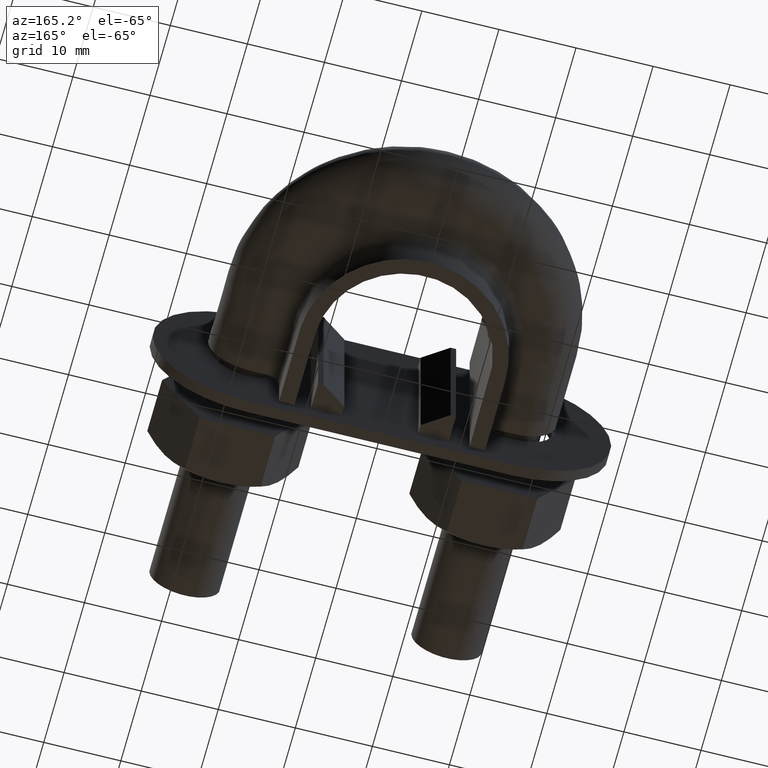
[diagram: clean part render]
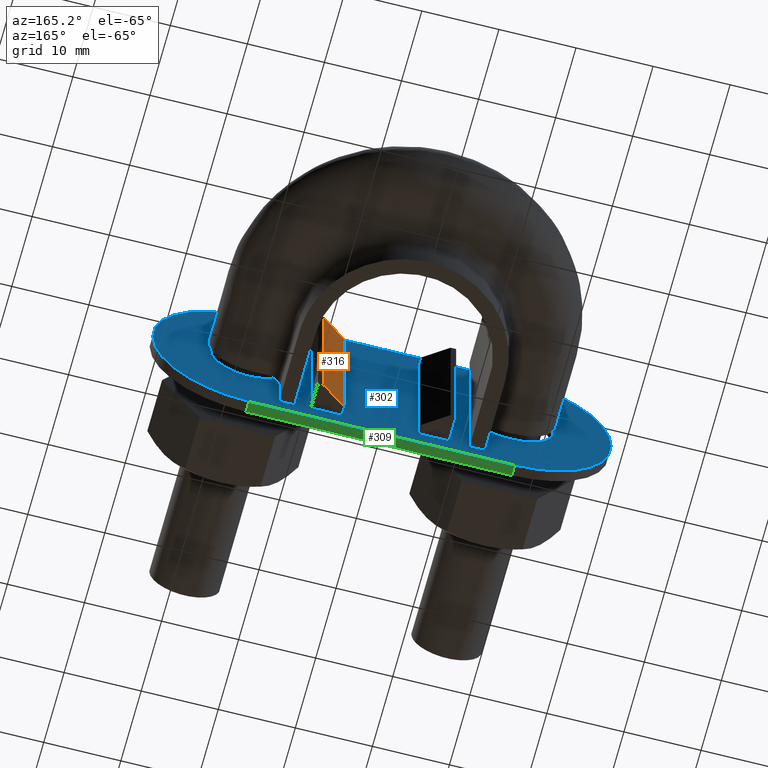
[diagram: same view with three faces highlighted in distinct colors, each labeled with its STEP entity id]
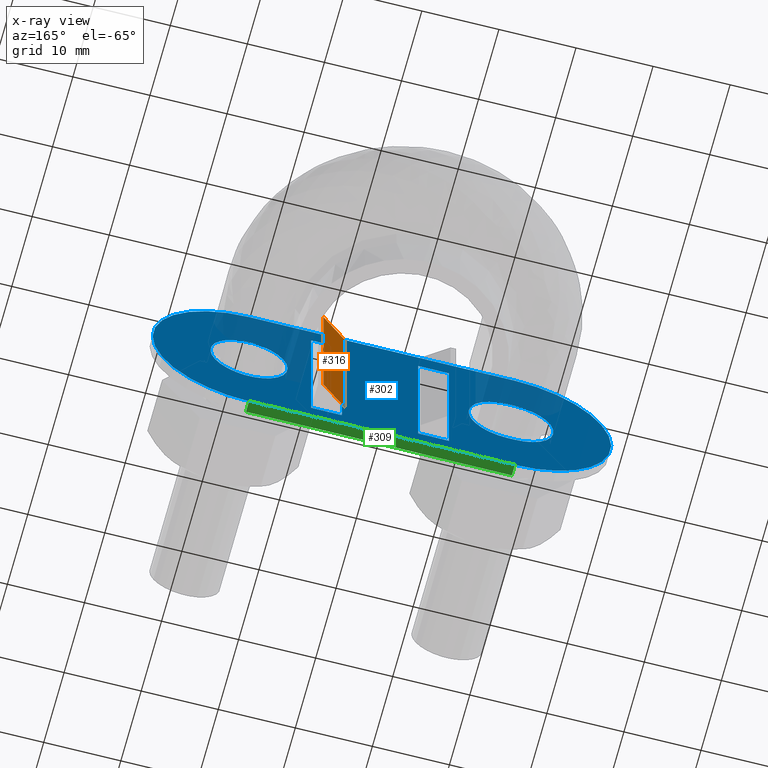
[diagram: x-ray of the same camera — body ghosted, the three highlighted faces saturated]
A machine part, auxiliary view with three faces highlighted in distinct colors.
The next image is the same camera in x-ray (body ghosted, the three faces saturated) — at least one of them is partly hidden behind the body in this view.
Their STEP definitions:

[orange] entity #316 — the highlighted planar face has unit normal (-0.5736, 0.8192, 0).
#316 = ADVANCED_FACE( '', ( #500 ), #501, .T. );
#500 = FACE_OUTER_BOUND( '', #1664, .T. );
#501 = PLANE( '', #1665 );
#1664 = EDGE_LOOP( '', ( #2153, #2154, #2155, #2156 ) );
#1665 = AXIS2_PLACEMENT_3D( '', #2157, #2158, #2159 );
#2153 = ORIENTED_EDGE( '', *, *, #2738, .F. );
#2154 = ORIENTED_EDGE( '', *, *, #2737, .F. );
#2155 = ORIENTED_EDGE( '', *, *, #2739, .T. );
#2156 = ORIENTED_EDGE( '', *, *, #2740, .T. );
#2157 = CARTESIAN_POINT( '', ( 8.23474038345669, 35.0999999999955, -10.0000000263939 ) );
#2158 = DIRECTION( '', ( -0.573576436350990, 0.819152044289031, 1.83801571867427E-009 ) );
#2159 = DIRECTION( '', ( 0.819152044289031, 0.573576436350990, -2.62564213630165E-009 ) );
#2737 = EDGE_CURVE( '', #3052, #3050, #3054, .T. );
#2738 = EDGE_CURVE( '', #3050, #3055, #3056, .T. );
#2739 = EDGE_CURVE( '', #3052, #3057, #3058, .T. );
#2740 = EDGE_CURVE( '', #3057, #3055, #3059, .T. );
#3050 = VERTEX_POINT( '', #3688 );
#3052 = VERTEX_POINT( '', #3691 );
#3054 = LINE( '', #3694, #3695 );
#3055 = VERTEX_POINT( '', #3696 );
#3056 = LINE( '', #3697, #3698 );
#3057 = VERTEX_POINT( '', #3699 );
#3058 = LINE( '', #3700, #3701 );
#3059 = LINE( '', #3702, #3703 );
#3688 = CARTESIAN_POINT( '', ( 8.23474044755755, 35.1000000000033, 9.99999997360612 ) );
#3691 = CARTESIAN_POINT( '', ( 8.23474038345670, 35.0999999999955, -10.0000000263939 ) );
#3694 = CARTESIAN_POINT( '', ( 8.23474038345670, 35.0999999999955, -10.0000000263939 ) );
#3695 = VECTOR( '', #4265, 1000.00000000000 );
#3696 = CARTESIAN_POINT( '', ( 4.95000003205051, 32.8000000000036, 9.99999998413475 ) );
#3697 = CARTESIAN_POINT( '', ( 8.23474044755755, 35.1000000000033, 9.99999997360612 ) );
#3698 = VECTOR( '', #4266, 1000.00000000000 );
#3699 = CARTESIAN_POINT( '', ( 4.94999996794966, 32.7999999999957, -10.0000000158653 ) );
#3700 = CARTESIAN_POINT( '', ( 8.23474038345669, 35.0999999999955, -10.0000000263939 ) );
#3701 = VECTOR( '', #4267, 1000.00000000000 );
#3702 = CARTESIAN_POINT( '', ( 4.94999996794966, 32.7999999999957, -10.0000000158653 ) );
#3703 = VECTOR( '', #4268, 1000.00000000000 );
#4265 = DIRECTION( '', ( 3.20504262939720E-009, 3.92126285499763E-013, 1.00000000000000 ) );
#4266 = DIRECTION( '', ( -0.819152044289031, -0.573576436350990, 2.62564211762958E-009 ) );
#4267 = DIRECTION( '', ( -0.819152044289031, -0.573576436350990, 2.62564211762958E-009 ) );
#4268 = DIRECTION( '', ( 3.20504262939720E-009, 3.92126285499763E-013, 1.00000000000000 ) );

[blue] entity #302 — the highlighted planar face has unit normal (0, 1, -0).
#302 = ADVANCED_FACE( '', ( #465, #466, #467, #468, #469 ), #470, .T. );
#465 = FACE_BOUND( '', #1629, .T. );
#466 = FACE_OUTER_BOUND( '', #1630, .T. );
#467 = FACE_BOUND( '', #1631, .T. );
#468 = FACE_BOUND( '', #1632, .T. );
#469 = FACE_BOUND( '', #1633, .T. );
#470 = PLANE( '', #1634 );
#1629 = EDGE_LOOP( '', ( #2046, #2047, #2048, #2049 ) );
#1630 = EDGE_LOOP( '', ( #2050, #2051, #2052, #2053, #2054, #2055 ) );
#1631 = EDGE_LOOP( '', ( #2056 ) );
#1632 = EDGE_LOOP( '', ( #2057, #2058, #2059, #2060 ) );
#1633 = EDGE_LOOP( '', ( #2061, #2062, #2063, #2064 ) );
#1634 = AXIS2_PLACEMENT_3D( '', #2065, #2066, #2067 );
#2046 = ORIENTED_EDGE( '', *, *, #2707, .T. );
#2047 = ORIENTED_EDGE( '', *, *, #2708, .T. );
#2048 = ORIENTED_EDGE( '', *, *, #2709, .F. );
#2049 = ORIENTED_EDGE( '', *, *, #2710, .F. );
#2050 = ORIENTED_EDGE( '', *, *, #2696, .T. );
#2051 = ORIENTED_EDGE( '', *, *, #2711, .T. );
#2052 = ORIENTED_EDGE( '', *, *, #2712, .T. );
#2053 = ORIENTED_EDGE( '', *, *, #2713, .T. );
#2054 = ORIENTED_EDGE( '', *, *, #2714, .T. );
#2055 = ORIENTED_EDGE( '', *, *, #2715, .T. );
#2056 = ORIENTED_EDGE( '', *, *, #2716, .F. );
#2057 = ORIENTED_EDGE( '', *, *, #2717, .F. );
#2058 = ORIENTED_EDGE( '', *, *, #2704, .F. );
#2059 = ORIENTED_EDGE( '', *, *, #2718, .F. );
#2060 = ORIENTED_EDGE( '', *, *, #2719, .F. );
#2061 = ORIENTED_EDGE( '', *, *, #2720, .F. );
#2062 = ORIENTED_EDGE( '', *, *, #2721, .T. );
#2063 = ORIENTED_EDGE( '', *, *, #2722, .T. );
#2064 = ORIENTED_EDGE( '', *, *, #2723, .F. );
#2065 = CARTESIAN_POINT( '', ( -17.5000000000000, 31.6000000000012, 5.60884303239448E-008 ) );
#2066 = DIRECTION( '', ( 6.87201678141937E-014, 1.00000000000000, -3.91726205863273E-013 ) );
#2067 = DIRECTION( '', ( 3.20504273121468E-009, 3.91726205643022E-013, 1.00000000000000 ) );
#2696 = EDGE_CURVE( '', #2985, #2986, #2987, .T. );
#2704 = EDGE_CURVE( '', #2998, #2999, #3000, .T. );
#2707 = EDGE_CURVE( '', #3003, #3004, #3005, .T. );
#2708 = EDGE_CURVE( '', #3004, #3006, #3007, .T. );
#2709 = EDGE_CURVE( '', #3008, #3006, #3009, .T. );
#2710 = EDGE_CURVE( '', #3003, #3008, #3010, .T. );
#2711 = EDGE_CURVE( '', #2986, #3011, #3012, .T. );
#2712 = EDGE_CURVE( '', #3011, #3013, #3014, .T. );
#2713 = EDGE_CURVE( '', #3013, #3015, #3016, .T. );
#2714 = EDGE_CURVE( '', #3015, #3017, #3018, .T. );
#2715 = EDGE_CURVE( '', #3017, #2985, #3019, .T. );
#2716 = EDGE_CURVE( '', #3020, #3020, #3021, .T. );
#2717 = EDGE_CURVE( '', #2999, #3022, #3023, .F. );
#2718 = EDGE_CURVE( '', #3024, #2998, #3025, .F. );
#2719 = EDGE_CURVE( '', #3022, #3024, #3026, .T. );
#2720 = EDGE_CURVE( '', #3027, #3028, #3029, .T. );
#2721 = EDGE_CURVE( '', #3027, #3030, #3031, .T. );
#2722 = EDGE_CURVE( '', #3030, #3032, #3033, .T. );
#2723 = EDGE_CURVE( '', #3028, #3032, #3034, .T. );
#2985 = VERTEX_POINT( '', #3593 );
#2986 = VERTEX_POINT( '', #3594 );
#2987 = CIRCLE( '', #3595, 12.5000000000000 );
#2998 = VERTEX_POINT( '', #3613 );
#2999 = VERTEX_POINT( '', #3614 );
#3000 = LINE( '', #3615, #3616 );
#3003 = VERTEX_POINT( '', #3621 );
#3004 = VERTEX_POINT( '', #3622 );
#3005 = LINE( '', #3623, #3624 );
#3006 = VERTEX_POINT( '', #3625 );
#3007 = LINE( '', #3626, #3627 );
#3008 = VERTEX_POINT( '', #3628 );
#3009 = LINE( '', #3629, #3630 );
#3010 = LINE( '', #3631, #3632 );
#3011 = VERTEX_POINT( '', #3633 );
#3012 = LINE( '', #3634, #3635 );
#3013 = VERTEX_POINT( '', #3636 );
#3014 = CIRCLE( '', #3637, 12.5000000000000 );
#3015 = VERTEX_POINT( '', #3638 );
#3016 = CIRCLE( '', #3639, 12.5000000000000 );
#3017 = VERTEX_POINT( '', #3640 );
#3018 = LINE( '', #3641, #3642 );
#3019 = CIRCLE( '', #3643, 12.5000000000000 );
#3020 = VERTEX_POINT( '', #3644 );
#3021 = CIRCLE( '', #3645, 5.00000000000000 );
#3022 = VERTEX_POINT( '', #3646 );
#3023 = CIRCLE( '', #3647, 5.00000000000000 );
#3024 = VERTEX_POINT( '', #3648 );
#3025 = CIRCLE( '', #3649, 5.00000000000000 );
#3026 = LINE( '', #3650, #3651 );
#3027 = VERTEX_POINT( '', #3652 );
#3028 = VERTEX_POINT( '', #3653 );
#3029 = LINE( '', #3654, #3655 );
#3030 = VERTEX_POINT( '', #3656 );
#3031 = LINE( '', #3657, #3658 );
#3032 = VERTEX_POINT( '', #3659 );
#3033 = LINE( '', #3660, #3661 );
#3034 = LINE( '', #3662, #3663 );
#3593 = CARTESIAN_POINT( '', ( -30.0000000000000, 31.6000000000020, 9.61514644641283E-008 ) );
#3594 = CARTESIAN_POINT( '', ( -17.4999999599370, 31.6000000000061, 12.5000000560884 ) );
#3595 = AXIS2_PLACEMENT_3D( '', #4206, #4207, #4208 );
#3613 = CARTESIAN_POINT( '', ( -16.5000000160252, 31.5999999999991, -4.99999994711661 ) );
#3614 = CARTESIAN_POINT( '', ( -17.5000000160252, 31.5999999999992, -4.99999994391157 ) );
#3615 = CARTESIAN_POINT( '', ( -17.5000000160252, 31.5999999999992, -4.99999994391157 ) );
#3616 = VECTOR( '', #4216, 1000.00000000000 );
#3621 = CARTESIAN_POINT( '', ( -8.95000003205044, 31.5999999999967, -9.99999997131469 ) );
#3622 = CARTESIAN_POINT( '', ( -4.95000003205044, 31.5999999999964, -9.99999998413485 ) );
#3623 = CARTESIAN_POINT( '', ( -8.95000003205044, 31.5999999999967, -9.99999997131469 ) );
#3624 = VECTOR( '', #4219, 1000.00000000000 );
#3625 = CARTESIAN_POINT( '', ( -4.94999996794958, 31.6000000000042, 10.0000000158651 ) );
#3626 = CARTESIAN_POINT( '', ( -4.95000003205044, 31.5999999999964, -9.99999998413485 ) );
#3627 = VECTOR( '', #4220, 1000.00000000000 );
#3628 = CARTESIAN_POINT( '', ( -8.94999996794959, 31.6000000000045, 10.0000000286853 ) );
#3629 = CARTESIAN_POINT( '', ( -8.94999996794959, 31.6000000000045, 10.0000000286853 ) );
#3630 = VECTOR( '', #4221, 1000.00000000000 );
#3631 = CARTESIAN_POINT( '', ( -8.95000003205044, 31.5999999999967, -9.99999997131469 ) );
#3632 = VECTOR( '', #4222, 1000.00000000000 );
#3633 = CARTESIAN_POINT( '', ( 17.0000000400631, 31.6000000000037, 12.4999999455145 ) );
#3634 = CARTESIAN_POINT( '', ( -17.4999999599370, 31.6000000000061, 12.5000000560884 ) );
#3635 = VECTOR( '', #4223, 1000.00000000000 );
#3636 = CARTESIAN_POINT( '', ( 29.5000000000000, 31.5999999999979, -9.45485711042514E-008 ) );
#3637 = AXIS2_PLACEMENT_3D( '', #4224, #4225, #4226 );
#3638 = CARTESIAN_POINT( '', ( 16.9999999599370, 31.5999999999939, -12.5000000544855 ) );
#3639 = AXIS2_PLACEMENT_3D( '', #4227, #4228, #4229 );
#3640 = CARTESIAN_POINT( '', ( -17.5000000400630, 31.5999999999963, -12.4999999439116 ) );
#3641 = CARTESIAN_POINT( '', ( 16.9999999599370, 31.5999999999939, -12.5000000544855 ) );
#3642 = VECTOR( '', #4230, 1000.00000000000 );
#3643 = AXIS2_PLACEMENT_3D( '', #4231, #4232, #4233 );
#3644 = CARTESIAN_POINT( '', ( 22.0000000000000, 31.6000099999985, -7.05107558282289E-008 ) );
#3645 = AXIS2_PLACEMENT_3D( '', #4234, #4235, #4236 );
#3646 = CARTESIAN_POINT( '', ( -17.4999999839748, 31.6000000000031, 5.00000005608843 ) );
#3647 = AXIS2_PLACEMENT_3D( '', #4237, #4238, #4239 );
#3648 = CARTESIAN_POINT( '', ( -16.4999999839748, 31.6000000000031, 5.00000005288339 ) );
#3649 = AXIS2_PLACEMENT_3D( '', #4240, #4241, #4242 );
#3650 = CARTESIAN_POINT( '', ( -16.4999999839748, 31.6000000000031, 5.00000005288339 ) );
#3651 = VECTOR( '', #4243, 1000.00000000000 );
#3652 = CARTESIAN_POINT( '', ( 4.94999996794958, 31.5999999999957, -10.0000000158648 ) );
#3653 = CARTESIAN_POINT( '', ( 4.95000003205043, 31.6000000000036, 9.99999998413522 ) );
#3654 = CARTESIAN_POINT( '', ( 4.94999996794958, 31.5999999999957, -10.0000000158648 ) );
#3655 = VECTOR( '', #4244, 1000.00000000000 );
#3656 = CARTESIAN_POINT( '', ( 8.94999996794958, 31.5999999999954, -10.0000000286850 ) );
#3657 = CARTESIAN_POINT( '', ( 4.94999996794958, 31.5999999999957, -10.0000000158648 ) );
#3658 = VECTOR( '', #4245, 1000.00000000000 );
#3659 = CARTESIAN_POINT( '', ( 8.95000003205043, 31.6000000000033, 9.99999997131505 ) );
#3660 = CARTESIAN_POINT( '', ( 8.94999996794958, 31.5999999999954, -10.0000000286850 ) );
#3661 = VECTOR( '', #4246, 1000.00000000000 );
#3662 = CARTESIAN_POINT( '', ( 4.95000003205043, 31.6000000000036, 9.99999998413522 ) );
#3663 = VECTOR( '', #4247, 1000.00000000000 );
#4206 = CARTESIAN_POINT( '', ( -17.5000000000000, 31.6000000000012, 5.60884303239448E-008 ) );
#4207 = DIRECTION( '', ( 6.87201678141938E-014, 1.00000000000000, -3.91726205863274E-013 ) );
#4208 = DIRECTION( '', ( -1.00000000000000, 6.87201690696929E-014, 3.20504259243680E-009 ) );
#4216 = DIRECTION( '', ( -1.00000000000000, 6.87201690696930E-014, 3.20504273121468E-009 ) );
#4219 = DIRECTION( '', ( 1.00000000000000, -6.87201690696930E-014, -3.20504273121468E-009 ) );
#4220 = DIRECTION( '', ( 3.20504262939720E-009, 3.92126285499763E-013, 1.00000000000000 ) );
#4221 = DIRECTION( '', ( 1.00000000000000, -6.87201690696930E-014, -3.20504273121468E-009 ) );
#4222 = DIRECTION( '', ( 3.20504262939720E-009, 3.92126285499763E-013, 1.00000000000000 ) );
#4223 = DIRECTION( '', ( 1.00000000000000, -6.87201690696930E-014, -3.20504273121468E-009 ) );
#4224 = CARTESIAN_POINT( '', ( 17.0000000000000, 31.5999999999988, -5.44855439029618E-008 ) );
#4225 = DIRECTION( '', ( 6.87201678141938E-014, 1.00000000000000, -3.91726205863274E-013 ) );
#4226 = DIRECTION( '', ( 3.20504217610317E-009, 3.91726205643022E-013, 1.00000000000000 ) );
#4227 = CARTESIAN_POINT( '', ( 17.0000000000000, 31.5999999999988, -5.44855404335148E-008 ) );
#4228 = DIRECTION( '', ( 6.87201678141938E-014, 1.00000000000000, -3.91726205863273E-013 ) );
#4229 = DIRECTION( '', ( 1.00000000000000, -6.87201690696929E-014, -3.20504259243680E-009 ) );
#4230 = DIRECTION( '', ( -1.00000000000000, 6.87201690696930E-014, 3.20504273121468E-009 ) );
#4231 = CARTESIAN_POINT( '', ( -17.5000000000000, 31.6000000000012, 5.60884337933917E-008 ) );
#4232 = DIRECTION( '', ( 6.87201678141938E-014, 1.00000000000000, -3.91726205863274E-013 ) );
#4233 = DIRECTION( '', ( -3.20504245365892E-009, -3.91726205643022E-013, -1.00000000000000 ) );
#4234 = CARTESIAN_POINT( '', ( 17.0000000000000, 31.6000099999988, -5.44855421721555E-008 ) );
#4235 = DIRECTION( '', ( 6.87201678141938E-014, 1.00000000000000, -3.91726205863273E-013 ) );
#4236 = DIRECTION( '', ( 1.00000000000000, -6.87201690696930E-014, -3.20504273121468E-009 ) );
#4237 = CARTESIAN_POINT( '', ( -17.5000000000000, 31.6000000000012, 5.60884303239448E-008 ) );
#4238 = DIRECTION( '', ( -6.87201678141938E-014, -1.00000000000000, 3.91726205863273E-013 ) );
#4239 = DIRECTION( '', ( -1.00000000000000, 6.87201690696930E-014, 3.20504273121468E-009 ) );
#4240 = CARTESIAN_POINT( '', ( -16.5000000000000, 31.6000000000011, 5.28833875927301E-008 ) );
#4241 = DIRECTION( '', ( -6.87201678141938E-014, -1.00000000000000, 3.91726205863273E-013 ) );
#4242 = DIRECTION( '', ( -1.00000000000000, 6.87201690696930E-014, 3.20504273121468E-009 ) );
#4243 = DIRECTION( '', ( 1.00000000000000, -6.87201690696930E-014, -3.20504273121468E-009 ) );
#4244 = DIRECTION( '', ( 3.20504262939720E-009, 3.92126285499763E-013, 1.00000000000000 ) );
#4245 = DIRECTION( '', ( 1.00000000000000, -6.87201690696930E-014, -3.20504273121468E-009 ) );
#4246 = DIRECTION( '', ( 3.20504262939720E-009, 3.92126285499763E-013, 1.00000000000000 ) );
#4247 = DIRECTION( '', ( 1.00000000000000, -6.87201690696930E-014, -3.20504273121468E-009 ) );

[green] entity #309 — the highlighted planar face has unit normal (-0, -0, -1).
#309 = ADVANCED_FACE( '', ( #484 ), #485, .T. );
#484 = FACE_OUTER_BOUND( '', #1648, .T. );
#485 = PLANE( '', #1649 );
#1648 = EDGE_LOOP( '', ( #2108, #2109, #2110, #2111 ) );
#1649 = AXIS2_PLACEMENT_3D( '', #2112, #2113, #2114 );
#2108 = ORIENTED_EDGE( '', *, *, #2714, .F. );
#2109 = ORIENTED_EDGE( '', *, *, #2731, .F. );
#2110 = ORIENTED_EDGE( '', *, *, #2683, .T. );
#2111 = ORIENTED_EDGE( '', *, *, #2729, .T. );
#2112 = CARTESIAN_POINT( '', ( 16.9999999599369, 30.0999999999939, -12.5000000544850 ) );
#2113 = DIRECTION( '', ( -3.20504273121468E-009, -3.91726205643022E-013, -1.00000000000000 ) );
#2114 = DIRECTION( '', ( 1.00000000000000, -6.87201690696930E-014, -3.20504273121468E-009 ) );
#2683 = EDGE_CURVE( '', #2960, #2958, #2961, .T. );
#2714 = EDGE_CURVE( '', #3015, #3017, #3018, .T. );
#2729 = EDGE_CURVE( '', #2958, #3017, #3042, .T. );
#2731 = EDGE_CURVE( '', #2960, #3015, #3045, .T. );
#2958 = VERTEX_POINT( '', #3558 );
#2960 = VERTEX_POINT( '', #3560 );
#2961 = LINE( '', #3561, #3562 );
#3015 = VERTEX_POINT( '', #3638 );
#3017 = VERTEX_POINT( '', #3640 );
#3018 = LINE( '', #3641, #3642 );
#3042 = LINE( '', #3676, #3677 );
#3045 = LINE( '', #3680, #3681 );
#3558 = CARTESIAN_POINT( '', ( -17.5000000400631, 30.0999999999963, -12.4999999439110 ) );
#3560 = CARTESIAN_POINT( '', ( 16.9999999599369, 30.0999999999939, -12.5000000544849 ) );
#3561 = CARTESIAN_POINT( '', ( 16.9999999599369, 30.0999999999939, -12.5000000544850 ) );
#3562 = VECTOR( '', #4183, 1000.00000000000 );
#3638 = CARTESIAN_POINT( '', ( 16.9999999599370, 31.5999999999939, -12.5000000544855 ) );
#3640 = CARTESIAN_POINT( '', ( -17.5000000400630, 31.5999999999963, -12.4999999439116 ) );
#3641 = CARTESIAN_POINT( '', ( 16.9999999599370, 31.5999999999939, -12.5000000544855 ) );
#3642 = VECTOR( '', #4230, 1000.00000000000 );
#3676 = CARTESIAN_POINT( '', ( -17.5000000400631, 30.0999999999963, -12.4999999439110 ) );
#3677 = VECTOR( '', #4253, 1000.00000000000 );
#3680 = CARTESIAN_POINT( '', ( 16.9999999599369, 30.0999999999939, -12.5000000544849 ) );
#3681 = VECTOR( '', #4257, 1000.00000000000 );
#4183 = DIRECTION( '', ( -1.00000000000000, 6.87201690696930E-014, 3.20504273121468E-009 ) );
#4230 = DIRECTION( '', ( -1.00000000000000, 6.87201690696930E-014, 3.20504273121468E-009 ) );
#4253 = DIRECTION( '', ( 6.87201678141938E-014, 1.00000000000000, -3.91726205863273E-013 ) );
#4257 = DIRECTION( '', ( 6.87201678141938E-014, 1.00000000000000, -3.91726205863273E-013 ) );